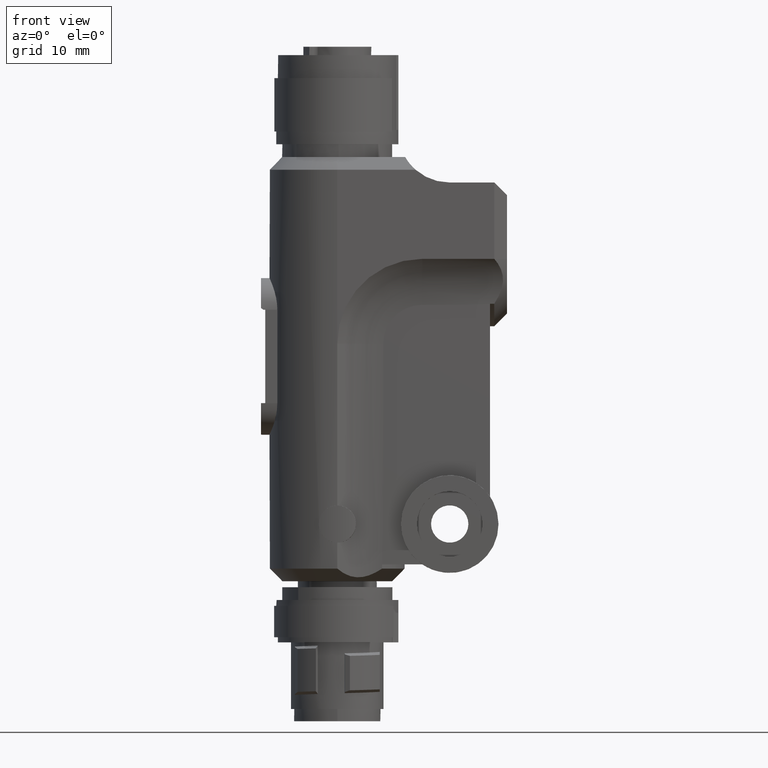
[diagram: clean part render]
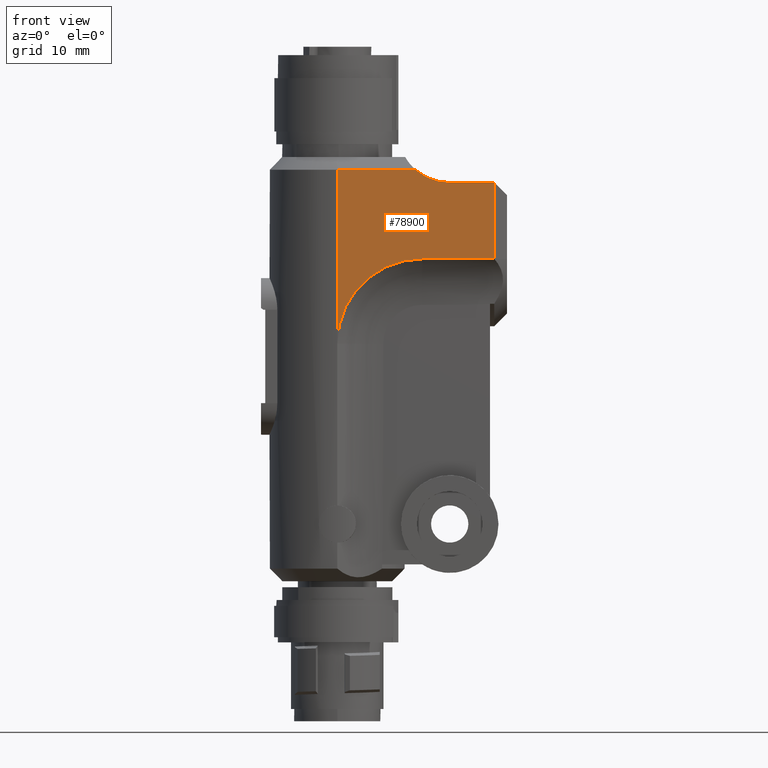
[diagram: same view with one face highlighted and labeled with its STEP entity id]
A machine part, front view. The second image highlights one B-rep face of the part: STEP entity #78900.
In plain terms, the highlighted planar face has unit normal (0, -1, 0).
Its self-contained STEP definition (entity closure, byte-faithful):
#4860=CARTESIAN_POINT('',(8.,3.5527136788005E-15,0.));
#4870=DIRECTION('',(0.,0.,-1.));
#4880=VECTOR('',#4870,1.);
#4890=LINE('',#4860,#4880);
#4900=CARTESIAN_POINT('',(8.,5.28330100839187E-15,48.5));
#4910=VERTEX_POINT('',#4900);
#4920=CARTESIAN_POINT('',(8.,1.95399252334028E-14,28.0000000000002));
#4930=VERTEX_POINT('',#4920);
#4940=EDGE_CURVE('',#4910,#4930,#4890,.T.);
#9790=CARTESIAN_POINT('',(8.,18.5,38.));
#9800=VERTEX_POINT('',#9790);
#9830=CARTESIAN_POINT('',(8.,18.5,0.));
#9840=DIRECTION('',(0.,0.,-1.));
#9850=VECTOR('',#9840,1.);
#9860=LINE('',#9830,#9850);
#9870=CARTESIAN_POINT('',(8.,18.5,47.));
#9880=VERTEX_POINT('',#9870);
#9890=EDGE_CURVE('',#9880,#9800,#9860,.T.);
#18640=CARTESIAN_POINT('',(8.,13.1961524227066,47.));
#18650=VERTEX_POINT('',#18640);
#18770=CARTESIAN_POINT('',(8.,0.,47.));
#18780=DIRECTION('',(0.,-1.,0.));
#18790=VECTOR('',#18780,1.);
#18800=LINE('',#18770,#18790);
#18810=EDGE_CURVE('',#9880,#18650,#18800,.T.);
#19090=CARTESIAN_POINT('',(8.,13.1961524227066,53.));
#19100=DIRECTION('',(-1.,0.,0.));
#19110=DIRECTION('',(0.,1.,0.));
#19120=AXIS2_PLACEMENT_3D('',#19090,#19100,#19110);
#19130=CIRCLE('',#19120,5.99999999999996);
#19140=CARTESIAN_POINT('',(8.,9.2275254561098,48.5));
#19150=VERTEX_POINT('',#19140);
#19160=EDGE_CURVE('',#18650,#19150,#19130,.T.);
#23620=CARTESIAN_POINT('',(8.,20.,38.));
#23630=DIRECTION('',(0.,1.,0.));
#23640=VECTOR('',#23630,1.);
#23650=LINE('',#23620,#23640);
#23660=CARTESIAN_POINT('',(8.,10.0002770649337,38.));
#23670=VERTEX_POINT('',#23660);
#23680=EDGE_CURVE('',#23670,#9800,#23650,.T.);
#24880=CARTESIAN_POINT('',(8.,10.,28.));
#24890=DIRECTION('',(1.,4.93038065763133E-31,2.52970265222012E-16));
#24900=DIRECTION('',(7.62657342238343E-31,-1.,-1.06581410364015E-15));
#24910=AXIS2_PLACEMENT_3D('',#24880,#24890,#24900);
#24920=CIRCLE('',#24910,9.99999999999999);
#24930=EDGE_CURVE('',#23670,#4930,#24920,.T.);
#78590=CARTESIAN_POINT('',(8.,0.,48.5));
#78600=DIRECTION('',(0.,-1.,0.));
#78610=VECTOR('',#78600,1.);
#78620=LINE('',#78590,#78610);
#78630=EDGE_CURVE('',#19150,#4910,#78620,.T.);
#78760=CARTESIAN_POINT('',(8.,7.46028462077985,13.0533067988253));
#78770=DIRECTION('',(1.,0.,0.));
#78780=DIRECTION('',(0.,-1.,0.));
#78790=AXIS2_PLACEMENT_3D('',#78760,#78770,#78780);
#78800=PLANE('',#78790);
#78810=ORIENTED_EDGE('',*,*,#4940,.T.);
#78820=ORIENTED_EDGE('',*,*,#78630,.T.);
#78830=ORIENTED_EDGE('',*,*,#19160,.T.);
#78840=ORIENTED_EDGE('',*,*,#18810,.T.);
#78850=ORIENTED_EDGE('',*,*,#9890,.F.);
#78860=ORIENTED_EDGE('',*,*,#23680,.T.);
#78870=ORIENTED_EDGE('',*,*,#24930,.F.);
#78880=EDGE_LOOP('',(#78870,#78860,#78850,#78840,#78830,#78820,#78810));
#78890=FACE_OUTER_BOUND('',#78880,.T.);
#78900=ADVANCED_FACE('',(#78890),#78800,.T.);